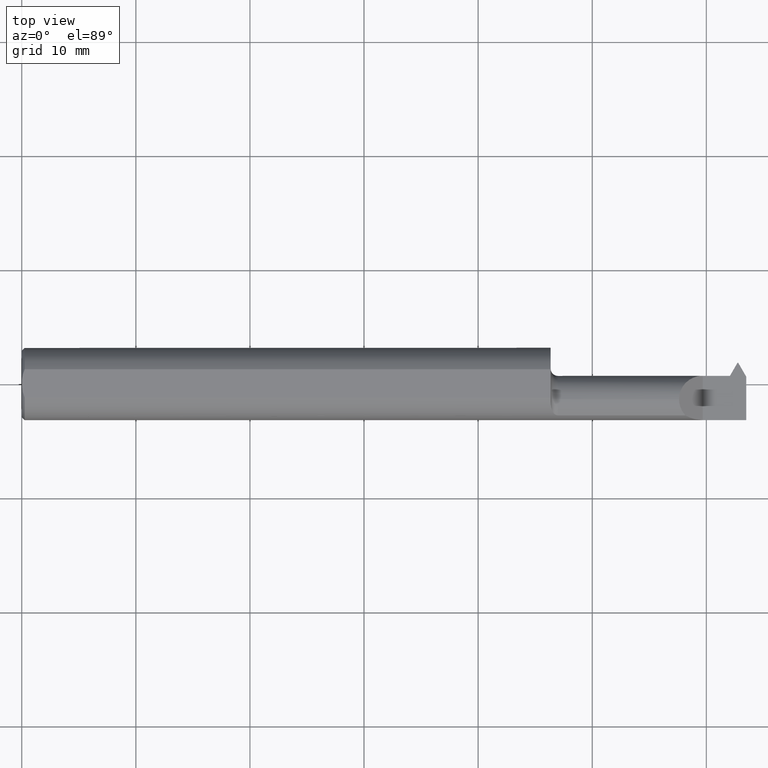
[diagram: clean part render]
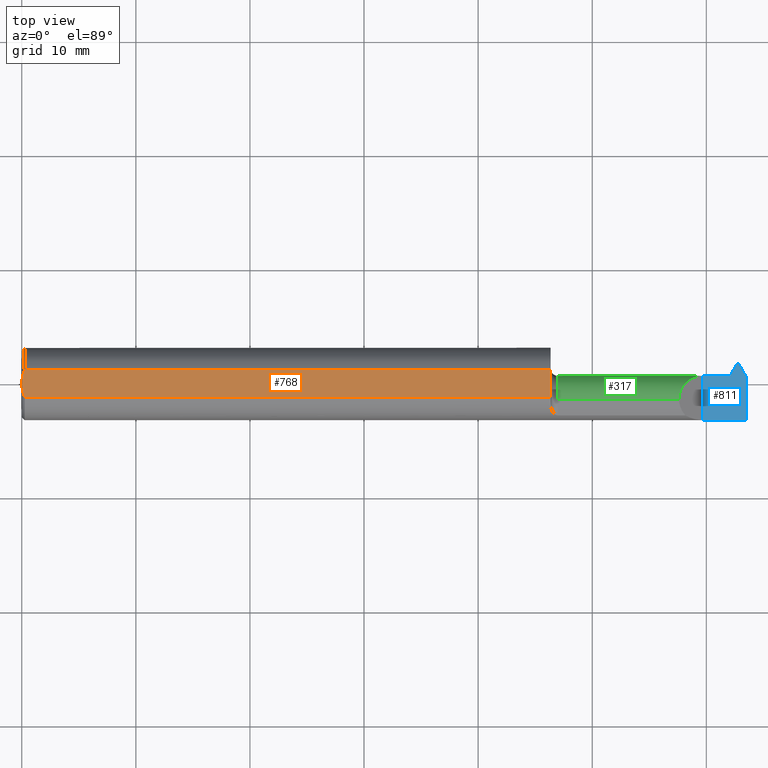
[diagram: same view with three faces highlighted in distinct colors, each labeled with its STEP entity id]
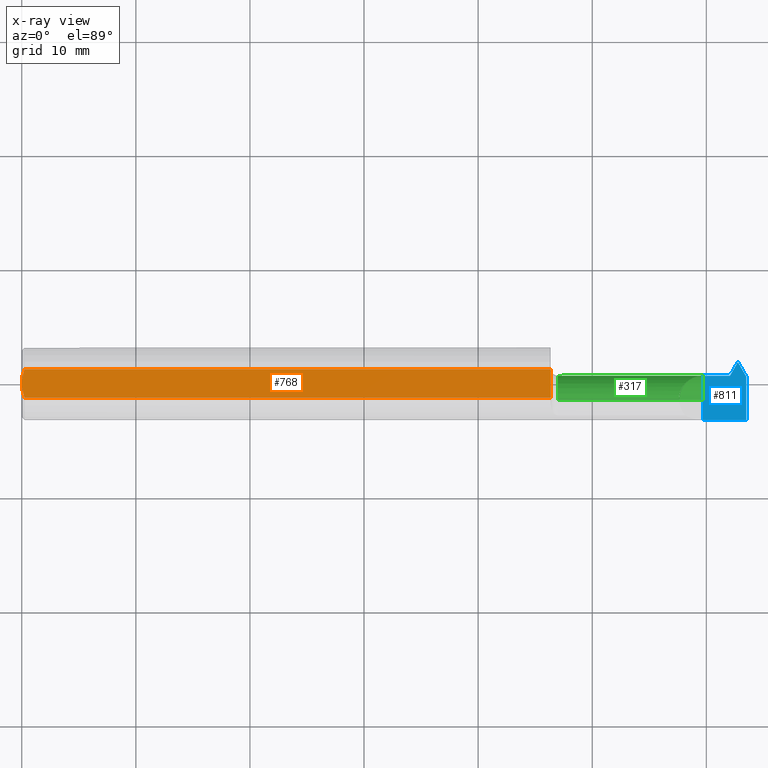
[diagram: x-ray of the same camera — body ghosted, the three highlighted faces saturated]
A machine part, top view with three faces highlighted in distinct colors.
The next image is the same camera in x-ray (body ghosted, the three faces saturated) — at least one of them is partly hidden behind the body in this view.
Their STEP definitions:

[orange] entity #768 — the highlighted planar face has unit normal (0, 0, 1).
#32 = EDGE_CURVE ( 'NONE', #207, #96, #373, .T. ) ;
#56 = DIRECTION ( 'NONE',  ( -1.000000000000000000, -0.000000000000000000, -0.000000000000000000 ) ) ;
#86 = CARTESIAN_POINT ( 'NONE',  ( 0.000000000000000000, 0.000000000000000000, 0.1148499999999999521 ) ) ;
#91 = EDGE_CURVE ( 'NONE', #207, #393, #344, .T. ) ;
#96 = VERTEX_POINT ( 'NONE', #86 ) ;
#101 = CARTESIAN_POINT ( 'NONE',  ( 1.825000000000000400, 0.04895916665957469188, 0.1148499999999999521 ) ) ;
#104 = CARTESIAN_POINT ( 'NONE',  ( 1.825000000000000400, 0.1248500000000000026, 0.1148499999999999521 ) ) ;
#114 = EDGE_LOOP ( 'NONE', ( #143, #772, #182, #366, #232 ) ) ;
#143 = ORIENTED_EDGE ( 'NONE', *, *, #91, .T. ) ;
#175 = CARTESIAN_POINT ( 'NONE',  ( 2.752883550275615487, 0.1248500000000000026, 0.1148499999999999521 ) ) ;
#182 = ORIENTED_EDGE ( 'NONE', *, *, #438, .T. ) ;
#185 = CARTESIAN_POINT ( 'NONE',  ( 0.01000000000000014939, 0.04895916665957469188, 0.1148499999999999521 ) ) ;
#207 = VERTEX_POINT ( 'NONE', #448 ) ;
#232 = ORIENTED_EDGE ( 'NONE', *, *, #32, .F. ) ;
#253 = CARTESIAN_POINT ( 'NONE',  ( 0.01000000000000014939, -0.04895916665957469188, 0.1148499999999999521 ) ) ;
#255 = VERTEX_POINT ( 'NONE', #798 ) ;
#275 = CARTESIAN_POINT ( 'NONE',  ( -8.474402044719765530E-17, 0.01683325733139112365, 0.1148499999999999521 ) ) ;
#287 = DIRECTION ( 'NONE',  ( 1.000000000000000000, 0.000000000000000000, 0.000000000000000000 ) ) ;
#320 = LINE ( 'NONE', #890, #328 ) ;
#328 = VECTOR ( 'NONE', #56, 39.37007874015748143 ) ;
#344 = LINE ( 'NONE', #782, #357 ) ;
#357 = VECTOR ( 'NONE', #287, 39.37007874015748143 ) ;
#364 = FACE_OUTER_BOUND ( 'NONE', #114, .T. ) ;
#366 = ORIENTED_EDGE ( 'NONE', *, *, #387, .F. ) ;
#373 = B_SPLINE_CURVE_WITH_KNOTS ( 'NONE', 3,
 ( #253, #403, #520, #609, #471, #812 ),
 .UNSPECIFIED., .F., .F.,
 ( 4, 2, 4 ),
 ( 0.001059891666211653424, 0.001694300407100094883, 0.002328709147988536343 ),
 .UNSPECIFIED. ) ;
#387 = EDGE_CURVE ( 'NONE', #96, #255, #641, .T. ) ;
#393 = VERTEX_POINT ( 'NONE', #825 ) ;
#398 = CARTESIAN_POINT ( 'NONE',  ( 0.003881058084116530311, 0.03335534922718986356, 0.1148499999999999521 ) ) ;
#403 = CARTESIAN_POINT ( 'NONE',  ( 0.006957100361671281381, -0.04119951620459590125, 0.1148499999999999521 ) ) ;
#431 = LINE ( 'NONE', #104, #443 ) ;
#438 = EDGE_CURVE ( 'NONE', #661, #255, #320, .T. ) ;
#443 = VECTOR ( 'NONE', #508, 39.37007874015748143 ) ;
#448 = CARTESIAN_POINT ( 'NONE',  ( 0.01000000000000014939, -0.04895916665957469188, 0.1148499999999999521 ) ) ;
#471 = CARTESIAN_POINT ( 'NONE',  ( -7.933430635897561254E-17, -0.008414813278457880172, 0.1148499999999999660 ) ) ;
#508 = DIRECTION ( 'NONE',  ( 0.000000000000000000, 1.000000000000000000, 0.000000000000000000 ) ) ;
#515 = DIRECTION ( 'NONE',  ( 1.000000000000000000, 0.000000000000000000, -0.000000000000000000 ) ) ;
#520 = CARTESIAN_POINT ( 'NONE',  ( 0.004414493321357296045, -0.03313351293251454166, 0.1148499999999999660 ) ) ;
#609 = CARTESIAN_POINT ( 'NONE',  ( 0.0009329797661891488150, -0.01671851415607274530, 0.1148499999999999244 ) ) ;
#631 = AXIS2_PLACEMENT_3D ( 'NONE', #175, #815, #515 ) ;
#639 = EDGE_CURVE ( 'NONE', #393, #661, #431, .T. ) ;
#641 = B_SPLINE_CURVE_WITH_KNOTS ( 'NONE', 3,
 ( #904, #275, #398, #185 ),
 .UNSPECIFIED., .F., .F.,
 ( 4, 4 ),
 ( 0.002328709147988536343, 0.003597800360742826626 ),
 .UNSPECIFIED. ) ;
#661 = VERTEX_POINT ( 'NONE', #101 ) ;
#768 = ADVANCED_FACE ( 'NONE', ( #364 ), #861, .T. ) ;
#772 = ORIENTED_EDGE ( 'NONE', *, *, #639, .T. ) ;
#782 = CARTESIAN_POINT ( 'NONE',  ( 0.000000000000000000, -0.04895916665957469188, 0.1148499999999999521 ) ) ;
#798 = CARTESIAN_POINT ( 'NONE',  ( 0.01000000000000014939, 0.04895916665957469188, 0.1148499999999999521 ) ) ;
#812 = CARTESIAN_POINT ( 'NONE',  ( 0.000000000000000000, 0.000000000000000000, 0.1148499999999999521 ) ) ;
#815 = DIRECTION ( 'NONE',  ( 0.000000000000000000, 0.000000000000000000, 1.000000000000000000 ) ) ;
#825 = CARTESIAN_POINT ( 'NONE',  ( 1.825000000000000400, -0.04895916665957478209, 0.1148499999999999521 ) ) ;
#861 = PLANE ( 'NONE',  #631 ) ;
#890 = CARTESIAN_POINT ( 'NONE',  ( 0.000000000000000000, 0.04895916665957469188, 0.1148499999999999521 ) ) ;
#904 = CARTESIAN_POINT ( 'NONE',  ( 0.000000000000000000, 0.000000000000000000, 0.1148499999999999521 ) ) ;

[blue] entity #811 — the highlighted planar face has unit normal (-0, 0, -1).
#4 = VERTEX_POINT ( 'NONE', #409 ) ;
#7 = ORIENTED_EDGE ( 'NONE', *, *, #842, .F. ) ;
#9 = DIRECTION ( 'NONE',  ( 0.4999999999999948375, -0.8660254037844417052, 0.000000000000000000 ) ) ;
#14 = LINE ( 'NONE', #766, #256 ) ;
#27 = AXIS2_PLACEMENT_3D ( 'NONE', #262, #118, #528 ) ;
#41 = VERTEX_POINT ( 'NONE', #269 ) ;
#52 = CARTESIAN_POINT ( 'NONE',  ( 2.472249999999999837, 0.07314999999999999281, 0.000000000000000000 ) ) ;
#77 = CARTESIAN_POINT ( 'NONE',  ( 2.472249999999999837, 0.07314999999999999281, 0.000000000000000000 ) ) ;
#87 = VERTEX_POINT ( 'NONE', #779 ) ;
#88 = LINE ( 'NONE', #367, #738 ) ;
#108 = ORIENTED_EDGE ( 'NONE', *, *, #311, .F. ) ;
#113 = LINE ( 'NONE', #752, #710 ) ;
#117 = ORIENTED_EDGE ( 'NONE', *, *, #775, .F. ) ;
#118 = DIRECTION ( 'NONE',  ( -1.224646799147352961E-16, 0.000000000000000000, -1.000000000000000000 ) ) ;
#131 = ORIENTED_EDGE ( 'NONE', *, *, #866, .F. ) ;
#174 = EDGE_CURVE ( 'NONE', #307, #587, #421, .T. ) ;
#230 = LINE ( 'NONE', #790, #382 ) ;
#256 = VECTOR ( 'NONE', #689, 39.37007874015748143 ) ;
#260 = ORIENTED_EDGE ( 'NONE', *, *, #638, .F. ) ;
#261 = ORIENTED_EDGE ( 'NONE', *, *, #174, .F. ) ;
#262 = CARTESIAN_POINT ( 'NONE',  ( 2.500000000000000000, -0.2500000000000000555, 0.000000000000000000 ) ) ;
#267 = CARTESIAN_POINT ( 'NONE',  ( 2.433030381068565173, 0.02814999999999999447, 0.000000000000000000 ) ) ;
#269 = CARTESIAN_POINT ( 'NONE',  ( 2.500000000000000000, -0.1248500000000000026, 0.000000000000000000 ) ) ;
#305 = DIRECTION ( 'NONE',  ( 0.4999999999999962808, 0.8660254037844408170, -0.000000000000000000 ) ) ;
#307 = VERTEX_POINT ( 'NONE', #52 ) ;
#311 = EDGE_CURVE ( 'NONE', #750, #433, #113, .T. ) ;
#367 = CARTESIAN_POINT ( 'NONE',  ( 2.350000000000000089, -0.2500000000000000555, 1.836970198721029441E-17 ) ) ;
#382 = VECTOR ( 'NONE', #305, 39.37007874015748854 ) ;
#390 = ORIENTED_EDGE ( 'NONE', *, *, #568, .F. ) ;
#397 = CARTESIAN_POINT ( 'NONE',  ( 3.749399456654640735E-32, -0.1248499999999999888, 3.061616997868381169E-16 ) ) ;
#409 = CARTESIAN_POINT ( 'NONE',  ( 2.469749999999999890, 0.07314999999999999281, 0.000000000000000000 ) ) ;
#421 = LINE ( 'NONE', #77, #496 ) ;
#433 = VERTEX_POINT ( 'NONE', #267 ) ;
#447 = CARTESIAN_POINT ( 'NONE',  ( 2.350000000000000089, -0.1248500000000000165, 1.836970198721029441E-17 ) ) ;
#463 = CARTESIAN_POINT ( 'NONE',  ( 2.500000000000000000, 0.000000000000000000, 0.000000000000000000 ) ) ;
#496 = VECTOR ( 'NONE', #9, 39.37007874015748143 ) ;
#528 = DIRECTION ( 'NONE',  ( -1.000000000000000000, 0.000000000000000000, 1.224646799147352961E-16 ) ) ;
#568 = EDGE_CURVE ( 'NONE', #433, #87, #14, .T. ) ;
#569 = CARTESIAN_POINT ( 'NONE',  ( 2.350000000000000089, 0.02814999999999997712, 8.266365894244625705E-17 ) ) ;
#587 = VERTEX_POINT ( 'NONE', #700 ) ;
#588 = LINE ( 'NONE', #397, #692 ) ;
#603 = DIRECTION ( 'NONE',  ( 1.000000000000000000, 0.000000000000000000, 0.000000000000000000 ) ) ;
#638 = EDGE_CURVE ( 'NONE', #718, #750, #88, .T. ) ;
#648 = VECTOR ( 'NONE', #756, 39.37007874015748143 ) ;
#651 = DIRECTION ( 'NONE',  ( -0.000000000000000000, 1.000000000000000000, -0.000000000000000000 ) ) ;
#662 = CARTESIAN_POINT ( 'NONE',  ( 1.825000000000000400, 0.07314999999999999281, 8.266365894244625705E-17 ) ) ;
#666 = EDGE_LOOP ( 'NONE', ( #117, #780, #390, #108, #260, #131, #7, #261 ) ) ;
#667 = FACE_OUTER_BOUND ( 'NONE', #666, .T. ) ;
#673 = PLANE ( 'NONE',  #27 ) ;
#678 = DIRECTION ( 'NONE',  ( -1.000000000000000000, -0.000000000000000000, -0.000000000000000000 ) ) ;
#689 = DIRECTION ( 'NONE',  ( 1.000000000000000000, -1.589931800928611612E-15, -0.000000000000000000 ) ) ;
#692 = VECTOR ( 'NONE', #678, 39.37007874015748143 ) ;
#700 = CARTESIAN_POINT ( 'NONE',  ( 2.500000000000000000, 0.02508559008996252837, 0.000000000000000000 ) ) ;
#710 = VECTOR ( 'NONE', #603, 39.37007874015748143 ) ;
#718 = VERTEX_POINT ( 'NONE', #447 ) ;
#726 = EDGE_CURVE ( 'NONE', #87, #4, #230, .T. ) ;
#738 = VECTOR ( 'NONE', #651, 39.37007874015748143 ) ;
#750 = VERTEX_POINT ( 'NONE', #569 ) ;
#752 = CARTESIAN_POINT ( 'NONE',  ( 1.825000000000000400, 0.02814999999999997712, 8.266365894244625705E-17 ) ) ;
#756 = DIRECTION ( 'NONE',  ( 0.000000000000000000, -1.000000000000000000, 0.000000000000000000 ) ) ;
#766 = CARTESIAN_POINT ( 'NONE',  ( 2.443769237886467049, 0.02814999999999997712, 0.000000000000000000 ) ) ;
#775 = EDGE_CURVE ( 'NONE', #4, #307, #819, .T. ) ;
#779 = CARTESIAN_POINT ( 'NONE',  ( 2.443769237886467049, 0.02814999999999997712, 0.000000000000000000 ) ) ;
#780 = ORIENTED_EDGE ( 'NONE', *, *, #726, .F. ) ;
#790 = CARTESIAN_POINT ( 'NONE',  ( 2.469749999999999890, 0.07314999999999999281, 0.000000000000000000 ) ) ;
#801 = DIRECTION ( 'NONE',  ( 1.000000000000000000, 0.000000000000000000, 0.000000000000000000 ) ) ;
#811 = ADVANCED_FACE ( 'NONE', ( #667 ), #673, .F. ) ;
#819 = LINE ( 'NONE', #662, #844 ) ;
#842 = EDGE_CURVE ( 'NONE', #587, #41, #880, .T. ) ;
#844 = VECTOR ( 'NONE', #801, 39.37007874015748143 ) ;
#866 = EDGE_CURVE ( 'NONE', #41, #718, #588, .T. ) ;
#880 = LINE ( 'NONE', #463, #648 ) ;

[green] entity #317 — the highlighted cylindrical surface (edge-blend (fillet) strip) has radius 2.0828 mm, axis along (-1, -0, -0).
#33 = CARTESIAN_POINT ( 'NONE',  ( 2.301965512114593437, 0.02814999999999997018, 0.04803448788540625597 ) ) ;
#34 =( BOUNDED_CURVE ( )  B_SPLINE_CURVE ( 3, ( #751, #121, #49, #590 ),
 .UNSPECIFIED., .F., .F. ) 
 B_SPLINE_CURVE_WITH_KNOTS ( ( 4, 4 ),
 ( 1.213003830136025529, 1.570796326794863029 ),
 .UNSPECIFIED. ) 
 CURVE ( )  GEOMETRIC_REPRESENTATION_ITEM ( )  RATIONAL_B_SPLINE_CURVE ( ( 1.000000000000000000, 0.9893604650975271753, 0.9893604650975271753, 1.000000000000000000 ) ) 
 REPRESENTATION_ITEM ( '' )  );
#35 = CARTESIAN_POINT ( 'NONE',  ( 2.451234871023850292, -0.007219850294038637935, -0.06745093875106314418 ) ) ;
#39 = CARTESIAN_POINT ( 'NONE',  ( 2.446901295964723833, 0.02229442029541566297, -0.03043069598078727497 ) ) ;
#47 = CARTESIAN_POINT ( 'NONE',  ( 2.446951323323887095, 0.02223654036413785090, -0.03057522583990424439 ) ) ;
#49 = CARTESIAN_POINT ( 'NONE',  ( 2.431252431409448800, 0.02814999999999999447, -0.009832190419034429751 ) ) ;
#59 = DIRECTION ( 'NONE',  ( -1.000000000000000000, -0.000000000000000000, -0.000000000000000000 ) ) ;
#67 = AXIS2_PLACEMENT_3D ( 'NONE', #263, #195, #450 ) ;
#70 = EDGE_CURVE ( 'NONE', #562, #78, #584, .T. ) ;
#78 = VERTEX_POINT ( 'NONE', #853 ) ;
#82 = CARTESIAN_POINT ( 'NONE',  ( 2.267999999999999350, -0.05385000000000006448, 0.08200000000000005895 ) ) ;
#93 = DIRECTION ( 'NONE',  ( -1.000000000000000000, -0.000000000000000000, -0.000000000000000000 ) ) ;
#103 = ORIENTED_EDGE ( 'NONE', *, *, #834, .F. ) ;
#113 = LINE ( 'NONE', #752, #710 ) ;
#121 = CARTESIAN_POINT ( 'NONE',  ( 2.429502856586511328, 0.02640042517706307768, -0.01950746593837224957 ) ) ;
#122 = CARTESIAN_POINT ( 'NONE',  ( 2.446901295964723833, -0.02341930401921279992, -0.07614442029541573786 ) ) ;
#137 = ORIENTED_EDGE ( 'NONE', *, *, #311, .T. ) ;
#146 = VERTEX_POINT ( 'NONE', #82 ) ;
#148 = CARTESIAN_POINT ( 'NONE',  ( 1.850000000000000311, -0.05385000000000006448, 0.08200000000000005895 ) ) ;
#150 =( BOUNDED_CURVE ( )  B_SPLINE_CURVE ( 3, ( #375, #377, #653, #35 ),
 .UNSPECIFIED., .F., .F. ) 
 B_SPLINE_CURVE_WITH_KNOTS ( ( 4, 4 ),
 ( 2.736394332561751686, 2.961070831367622169 ),
 .UNSPECIFIED. ) 
 CURVE ( )  GEOMETRIC_REPRESENTATION_ITEM ( )  RATIONAL_B_SPLINE_CURVE ( ( 1.000000000000000000, 0.9957977946417078119, 0.9957977946417078119, 1.000000000000000000 ) ) 
 REPRESENTATION_ITEM ( '' )  );
#157 = CARTESIAN_POINT ( 'NONE',  ( 2.452452630173280301, -0.02103119801956392781, -0.07699899284797022403 ) ) ;
#183 = AXIS2_PLACEMENT_3D ( 'NONE', #595, #189, #384 ) ;
#189 = DIRECTION ( 'NONE',  ( -1.000000000000000000, -0.000000000000000000, -0.000000000000000000 ) ) ;
#194 = CARTESIAN_POINT ( 'NONE',  ( 1.825000000000000400, 0.02295711951837044185, -0.02871700526327145009 ) ) ;
#195 = DIRECTION ( 'NONE',  ( -1.000000000000000000, -0.000000000000000000, -0.000000000000000000 ) ) ;
#210 =( BOUNDED_CURVE ( )  B_SPLINE_CURVE ( 3, ( #657, #315, #157, #715 ),
 .UNSPECIFIED., .F., .T. ) 
 B_SPLINE_CURVE_WITH_KNOTS ( ( 4, 4 ),
 ( 3.320488901919212310, 3.925365243094490086 ),
 .UNSPECIFIED. ) 
 CURVE ( )  GEOMETRIC_REPRESENTATION_ITEM ( )  RATIONAL_B_SPLINE_CURVE ( ( 1.000000000000000000, 0.9697420810547345837, 0.9697420810547345837, 1.000000000000000000 ) ) 
 REPRESENTATION_ITEM ( '' )  );
#218 =( BOUNDED_CURVE ( )  B_SPLINE_CURVE ( 3, ( #674, #47, #758, #817 ),
 .UNSPECIFIED., .F., .F. ) 
 B_SPLINE_CURVE_WITH_KNOTS ( ( 4, 4 ),
 ( 3.543943011109390362, 3.546790974617834102 ),
 .UNSPECIFIED. ) 
 CURVE ( )  GEOMETRIC_REPRESENTATION_ITEM ( )  RATIONAL_B_SPLINE_CURVE ( ( 1.000000000000000000, 0.9999993240921020154, 0.9999993240921020154, 1.000000000000000000 ) ) 
 REPRESENTATION_ITEM ( '' )  );
#231 = VECTOR ( 'NONE', #445, 39.37007874015748143 ) ;
#235 = ORIENTED_EDGE ( 'NONE', *, *, #757, .F. ) ;
#263 = CARTESIAN_POINT ( 'NONE',  ( 2.446901295964723833, -0.05385000000000006448, 0.000000000000000000 ) ) ;
#267 = CARTESIAN_POINT ( 'NONE',  ( 2.433030381068565173, 0.02814999999999999447, 0.000000000000000000 ) ) ;
#270 = EDGE_CURVE ( 'NONE', #146, #750, #873, .T. ) ;
#276 = ORIENTED_EDGE ( 'NONE', *, *, #270, .T. ) ;
#278 = CARTESIAN_POINT ( 'NONE',  ( 2.427837500586933484, 0.02295711951836859263, -0.02871700526327635242 ) ) ;
#279 = CARTESIAN_POINT ( 'NONE',  ( 2.446837138557887759, 0.02271536081068179988, -0.02936361829919950650 ) ) ;
#285 = CARTESIAN_POINT ( 'NONE',  ( 2.451234871023850292, -0.007219850294038637935, -0.06745093875106314418 ) ) ;
#298 = ORIENTED_EDGE ( 'NONE', *, *, #672, .F. ) ;
#310 = CARTESIAN_POINT ( 'NONE',  ( 2.267999999999998906, -0.005815512114593841472, 0.08200000000000005895 ) ) ;
#311 = EDGE_CURVE ( 'NONE', #750, #433, #113, .T. ) ;
#314 = AXIS2_PLACEMENT_3D ( 'NONE', #736, #608, #612 ) ;
#315 = CARTESIAN_POINT ( 'NONE',  ( 2.453251230041400888, -0.03705956632386064875, -0.08200000000000007283 ) ) ;
#317 = ADVANCED_FACE ( 'NONE', ( #389 ), #668, .T. ) ;
#318 = EDGE_CURVE ( 'NONE', #562, #753, #218, .T. ) ;
#321 = ORIENTED_EDGE ( 'NONE', *, *, #411, .T. ) ;
#346 = VERTEX_POINT ( 'NONE', #122 ) ;
#361 = CARTESIAN_POINT ( 'NONE',  ( 2.446976212146491303, 0.02220744610134771022, -0.03064742880798631067 ) ) ;
#375 = CARTESIAN_POINT ( 'NONE',  ( 2.446901295964723833, -0.02341930401921279992, -0.07614442029541573786 ) ) ;
#377 = CARTESIAN_POINT ( 'NONE',  ( 2.448882081099467367, -0.01770465614405450014, -0.07386059291250940406 ) ) ;
#384 = DIRECTION ( 'NONE',  ( 0.000000000000000000, 0.000000000000000000, 1.000000000000000000 ) ) ;
#388 = CARTESIAN_POINT ( 'NONE',  ( 2.453558178717972993, -0.05385000000000006448, -0.08200000000000007283 ) ) ;
#389 = FACE_OUTER_BOUND ( 'NONE', #685, .T. ) ;
#396 = VECTOR ( 'NONE', #93, 39.37007874015748143 ) ;
#411 = EDGE_CURVE ( 'NONE', #753, #346, #783, .T. ) ;
#433 = VERTEX_POINT ( 'NONE', #267 ) ;
#434 = LINE ( 'NONE', #719, #396 ) ;
#445 = DIRECTION ( 'NONE',  ( -1.000000000000000000, -0.000000000000000000, -0.000000000000000000 ) ) ;
#450 = DIRECTION ( 'NONE',  ( 0.000000000000000000, -9.369905466074068109E-16, -1.000000000000000000 ) ) ;
#453 = CIRCLE ( 'NONE', #183, 0.08200000000000005895 ) ;
#458 = LINE ( 'NONE', #194, #860 ) ;
#462 = VERTEX_POINT ( 'NONE', #711 ) ;
#472 = VERTEX_POINT ( 'NONE', #285 ) ;
#489 = CARTESIAN_POINT ( 'NONE',  ( 2.446767348830406696, 0.02295711951837229800, -0.02871700526327717121 ) ) ;
#530 = VERTEX_POINT ( 'NONE', #278 ) ;
#558 = ORIENTED_EDGE ( 'NONE', *, *, #744, .T. ) ;
#560 = CARTESIAN_POINT ( 'NONE',  ( 2.446976212146491303, 0.02220744610134771022, -0.03064742880798631067 ) ) ;
#562 = VERTEX_POINT ( 'NONE', #361 ) ;
#569 = CARTESIAN_POINT ( 'NONE',  ( 2.350000000000000089, 0.02814999999999997712, 8.266365894244625705E-17 ) ) ;
#584 =( BOUNDED_CURVE ( )  B_SPLINE_CURVE ( 3, ( #560, #713, #279, #489 ),
 .UNSPECIFIED., .F., .F. ) 
 B_SPLINE_CURVE_WITH_KNOTS ( ( 4, 4 ),
 ( 4.508237422836256947, 4.533492732055277585 ),
 .UNSPECIFIED. ) 
 CURVE ( )  GEOMETRIC_REPRESENTATION_ITEM ( )  RATIONAL_B_SPLINE_CURVE ( ( 1.000000000000000000, 0.9999468481526490038, 0.9999468481526490038, 1.000000000000000000 ) ) 
 REPRESENTATION_ITEM ( '' )  );
#590 = CARTESIAN_POINT ( 'NONE',  ( 2.433030381068565173, 0.02814999999999999447, 0.000000000000000000 ) ) ;
#595 = CARTESIAN_POINT ( 'NONE',  ( 1.850000000000000311, -0.05385000000000006448, 0.000000000000000000 ) ) ;
#598 = VERTEX_POINT ( 'NONE', #148 ) ;
#603 = DIRECTION ( 'NONE',  ( 1.000000000000000000, 0.000000000000000000, 0.000000000000000000 ) ) ;
#608 = DIRECTION ( 'NONE',  ( -1.000000000000000000, -0.000000000000000000, -0.000000000000000000 ) ) ;
#612 = DIRECTION ( 'NONE',  ( 0.000000000000000000, 0.000000000000000000, 1.000000000000000000 ) ) ;
#653 = CARTESIAN_POINT ( 'NONE',  ( 2.450332701925785450, -0.01228205133668571446, -0.07095053707884133032 ) ) ;
#657 = CARTESIAN_POINT ( 'NONE',  ( 2.453558178717972993, -0.05385000000000006448, -0.08200000000000007283 ) ) ;
#668 = CYLINDRICAL_SURFACE ( 'NONE', #314, 0.08200000000000005895 ) ;
#672 = EDGE_CURVE ( 'NONE', #146, #598, #730, .T. ) ;
#674 = CARTESIAN_POINT ( 'NONE',  ( 2.446976212146491303, 0.02220744610134771022, -0.03064742880798631067 ) ) ;
#685 = EDGE_LOOP ( 'NONE', ( #235, #558, #103, #298, #276, #137, #693, #821, #686, #789, #321, #892 ) ) ;
#686 = ORIENTED_EDGE ( 'NONE', *, *, #70, .F. ) ;
#693 = ORIENTED_EDGE ( 'NONE', *, *, #855, .F. ) ;
#697 = EDGE_CURVE ( 'NONE', #346, #472, #150, .T. ) ;
#710 = VECTOR ( 'NONE', #603, 39.37007874015748143 ) ;
#711 = CARTESIAN_POINT ( 'NONE',  ( 1.850000000000000311, -0.05385000000000005060, -0.08200000000000005895 ) ) ;
#713 = CARTESIAN_POINT ( 'NONE',  ( 2.446906763363936310, 0.02246545638879309317, -0.03000712701778015037 ) ) ;
#715 = CARTESIAN_POINT ( 'NONE',  ( 2.451234871023850292, -0.007219850294038637935, -0.06745093875106314418 ) ) ;
#719 = CARTESIAN_POINT ( 'NONE',  ( 1.825000000000000400, -0.05385000000000005060, -0.08200000000000005895 ) ) ;
#730 = LINE ( 'NONE', #795, #231 ) ;
#732 = CARTESIAN_POINT ( 'NONE',  ( 2.267999999999999350, -0.05385000000000006448, 0.08200000000000005895 ) ) ;
#736 = CARTESIAN_POINT ( 'NONE',  ( 1.825000000000000400, -0.05385000000000006448, 0.000000000000000000 ) ) ;
#744 = EDGE_CURVE ( 'NONE', #896, #462, #434, .T. ) ;
#750 = VERTEX_POINT ( 'NONE', #569 ) ;
#751 = CARTESIAN_POINT ( 'NONE',  ( 2.427837500586933484, 0.02295711951836859263, -0.02871700526327635242 ) ) ;
#752 = CARTESIAN_POINT ( 'NONE',  ( 1.825000000000000400, 0.02814999999999997712, 8.266365894244625705E-17 ) ) ;
#753 = VERTEX_POINT ( 'NONE', #39 ) ;
#757 = EDGE_CURVE ( 'NONE', #896, #472, #210, .T. ) ;
#758 = CARTESIAN_POINT ( 'NONE',  ( 2.446926351246418996, 0.02226553178175599487, -0.03050298151534074423 ) ) ;
#783 = CIRCLE ( 'NONE', #67, 0.08200000000000005895 ) ;
#789 = ORIENTED_EDGE ( 'NONE', *, *, #318, .T. ) ;
#794 = EDGE_CURVE ( 'NONE', #78, #530, #458, .T. ) ;
#795 = CARTESIAN_POINT ( 'NONE',  ( 1.825000000000000400, -0.05385000000000006448, 0.08200000000000005895 ) ) ;
#817 = CARTESIAN_POINT ( 'NONE',  ( 2.446901295964723833, 0.02229442029541566297, -0.03043069598078727497 ) ) ;
#821 = ORIENTED_EDGE ( 'NONE', *, *, #794, .F. ) ;
#834 = EDGE_CURVE ( 'NONE', #598, #462, #453, .T. ) ;
#853 = CARTESIAN_POINT ( 'NONE',  ( 2.446767348830406696, 0.02295711951837229800, -0.02871700526327717121 ) ) ;
#855 = EDGE_CURVE ( 'NONE', #530, #433, #34, .T. ) ;
#860 = VECTOR ( 'NONE', #59, 39.37007874015748143 ) ;
#870 = CARTESIAN_POINT ( 'NONE',  ( 2.350000000000000089, 0.02814999999999997712, 8.266365894244625705E-17 ) ) ;
#873 =( BOUNDED_CURVE ( )  B_SPLINE_CURVE ( 3, ( #732, #310, #33, #870 ),
 .UNSPECIFIED., .F., .T. ) 
 B_SPLINE_CURVE_WITH_KNOTS ( ( 4, 4 ),
 ( 0.000000000000000000, 1.570796326794896114 ),
 .UNSPECIFIED. ) 
 CURVE ( )  GEOMETRIC_REPRESENTATION_ITEM ( )  RATIONAL_B_SPLINE_CURVE ( ( 1.000000000000000000, 0.8047378541243650485, 0.8047378541243650485, 1.000000000000000000 ) ) 
 REPRESENTATION_ITEM ( '' )  );
#892 = ORIENTED_EDGE ( 'NONE', *, *, #697, .T. ) ;
#896 = VERTEX_POINT ( 'NONE', #388 ) ;